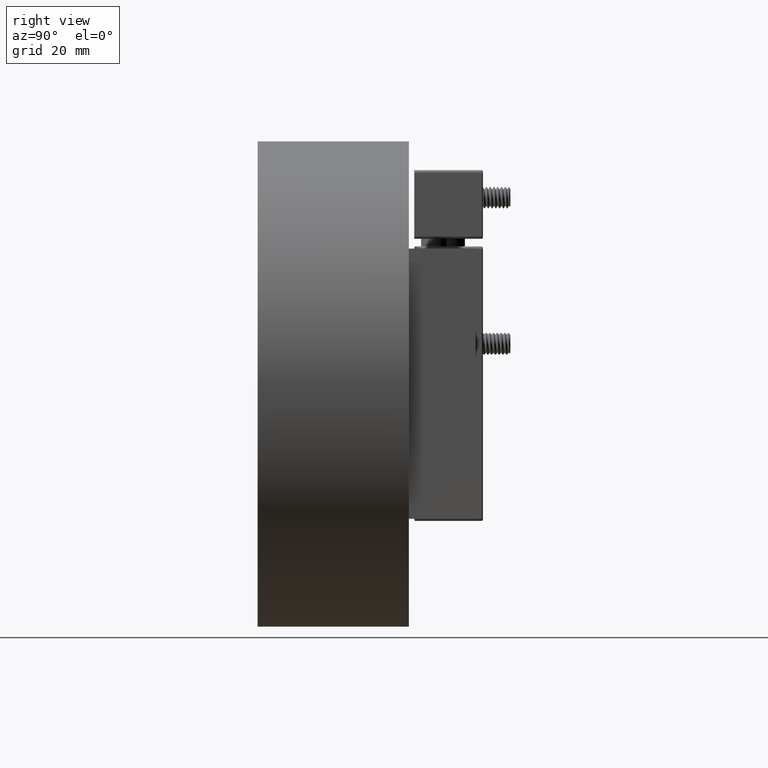
[diagram: clean part render]
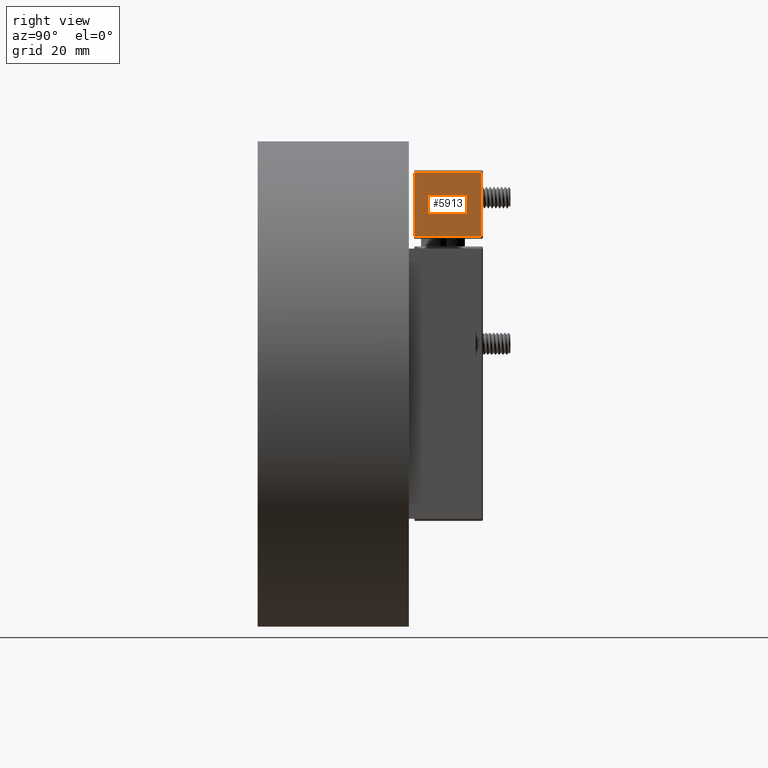
[diagram: same view with one face highlighted and labeled with its STEP entity id]
A machine part, right view. The second image highlights one B-rep face of the part: STEP entity #5913.
In plain terms, the highlighted planar face has unit normal (-1, 0, -0).
Its self-contained STEP definition (entity closure, byte-faithful):
#651=PLANE('',#6417);
#825=FACE_OUTER_BOUND('',#1240,.T.);
#1240=EDGE_LOOP('',(#4451,#4452,#4453,#4454));
#1664=LINE('',#9268,#1997);
#1665=LINE('',#9270,#1998);
#1666=LINE('',#9272,#1999);
#1667=LINE('',#9273,#2000);
#1997=VECTOR('',#7453,0.49);
#1998=VECTOR('',#7454,0.46);
#1999=VECTOR('',#7455,0.49);
#2000=VECTOR('',#7456,0.46);
#2660=VERTEX_POINT('',#9266);
#2661=VERTEX_POINT('',#9267);
#2662=VERTEX_POINT('',#9269);
#2663=VERTEX_POINT('',#9271);
#3311=EDGE_CURVE('',#2660,#2661,#1664,.F.);
#3312=EDGE_CURVE('',#2661,#2662,#1665,.F.);
#3313=EDGE_CURVE('',#2662,#2663,#1666,.T.);
#3314=EDGE_CURVE('',#2663,#2660,#1667,.T.);
#4451=ORIENTED_EDGE('',*,*,#3311,.T.);
#4452=ORIENTED_EDGE('',*,*,#3312,.T.);
#4453=ORIENTED_EDGE('',*,*,#3313,.T.);
#4454=ORIENTED_EDGE('',*,*,#3314,.T.);
#5913=ADVANCED_FACE('',(#825),#651,.F.);
#6417=AXIS2_PLACEMENT_3D('',#9265,#7451,#7452);
#7451=DIRECTION('center_axis',(0.,-1.,0.));
#7452=DIRECTION('ref_axis',(0.,0.,-1.));
#7453=DIRECTION('',(0.,0.,-1.));
#7454=DIRECTION('',(-1.,0.,0.));
#7455=DIRECTION('',(0.,0.,-1.));
#7456=DIRECTION('',(-1.,0.,0.));
#9265=CARTESIAN_POINT('Origin',(0.,0.,0.5));
#9266=CARTESIAN_POINT('',(0.02,0.,0.));
#9267=CARTESIAN_POINT('',(0.02,0.,0.49));
#9268=CARTESIAN_POINT('',(0.02,0.,0.49));
#9269=CARTESIAN_POINT('',(0.48,0.,0.49));
#9270=CARTESIAN_POINT('',(0.48,0.,0.49));
#9271=CARTESIAN_POINT('',(0.48,0.,0.));
#9272=CARTESIAN_POINT('',(0.48,0.,0.49));
#9273=CARTESIAN_POINT('',(0.48,0.,0.));